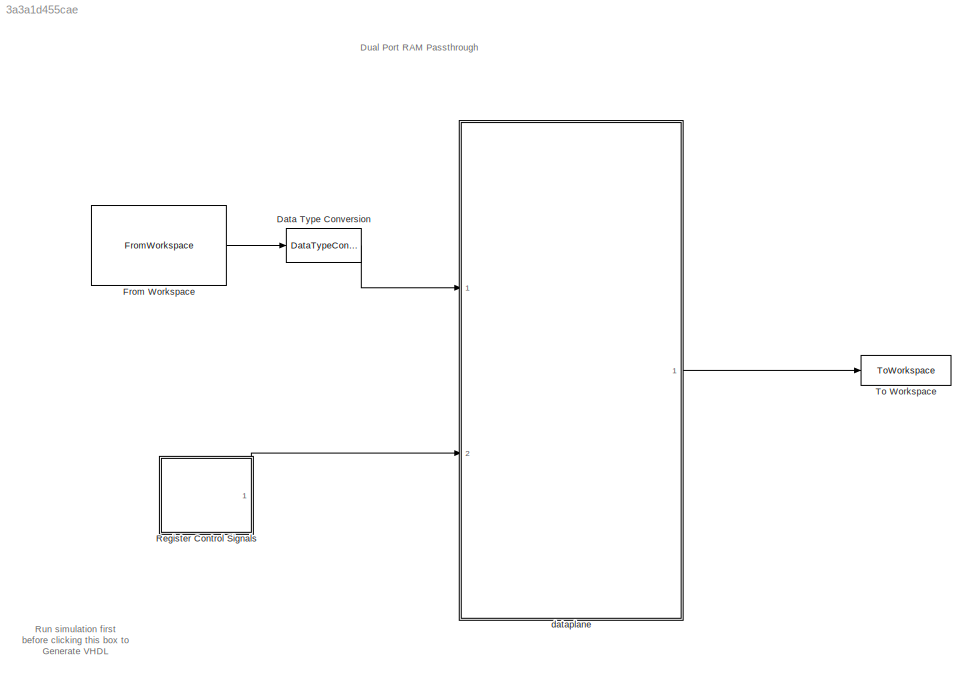
MODEL slx_3a3a1d455cae
KIND model
CONFIG AbsTol = auto
CONFIG EnableMultiTasking = off
CONFIG FixedStep = auto
CONFIG InitFcn = initCallback
CONFIG MaxStep = auto
CONFIG MinStep = auto
CONFIG RelTol = 1e-3
CONFIG SampleTimeConstraint = Unconstrained
CONFIG SolverName = FixedStepDiscrete
CONFIG StartTime = 0.0
CONFIG StopFcn = stopCallback
CONFIG StopTime = stopTime
BLOCK [DataTypeConversion] Data Type Conversion
  OutDataTypeStr = fixdt(1,32,28)
  RndMeth = Floor
  SaturateOnIntegerOverflow = off
BLOCK [FromWorkspace] From Workspace
  Interpolate = off
  OutDataTypeStr = double
  OutputAfterFinalValue = Setting to zero
  SampleTime = 1 / config.system.sampleClockFrequency
  VariableName = testSignal.asTimeSeries
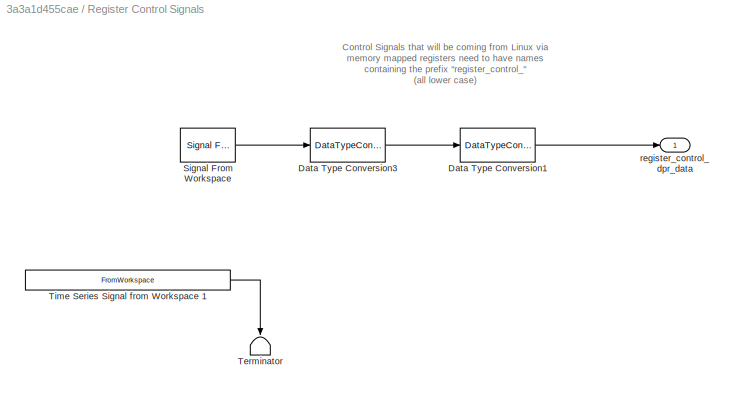
BLOCK [SubSystem] Register Control Signals
  Ports = [0, 1]
  RequestExecContextInheritance = off
BLOCK [DataTypeConversion] Register Control Signals/Data Type Conversion1
  ConvertRealWorld = Stored Integer (SI)
  OutDataTypeStr = fixdt(0,32,0)
  RndMeth = Floor
  SaturateOnIntegerOverflow = off
BLOCK [DataTypeConversion] Register Control Signals/Data Type Conversion3
  ConvertRealWorld = Stored Integer (SI)
  OutDataTypeStr = fixdt(0,32,8)
  RndMeth = Floor
  SaturateOnIntegerOverflow = off
BLOCK [Reference] Register Control Signals/Signal From Workspace  REF=dspsrcs4/Signal From
Workspace
  Ports = [0, 1]
  SourceBlock = dspsrcs4/Signal From\nWorkspace
  SourceProductBaseCode = DS
  SourceType = Signal From Workspace
BLOCK [Terminator] Register Control Signals/Terminator
  NameLocation = left
BLOCK [FromWorkspace] Register Control Signals/Time Series Signal from Workspace 1
  OutDataTypeStr = double
  SampleTime = 1 / config.system.sampleClockFrequency
  VariableName = mp.register{1}.timeseries
BLOCK [Outport] Register Control Signals/register_control_dpr_data 
  VectorParamsAs1DForOutWhenUnconnected = off
BLOCK [ToWorkspace] To Workspace
  FixptAsFi = on
  MaxDataPoints = inf
  Ports = [1]
  SampleTime = -1
  Save2DSignal = 2-D array (concatenate along first dimension)
  SaveFormat = Timeseries
  VariableName = dataOut
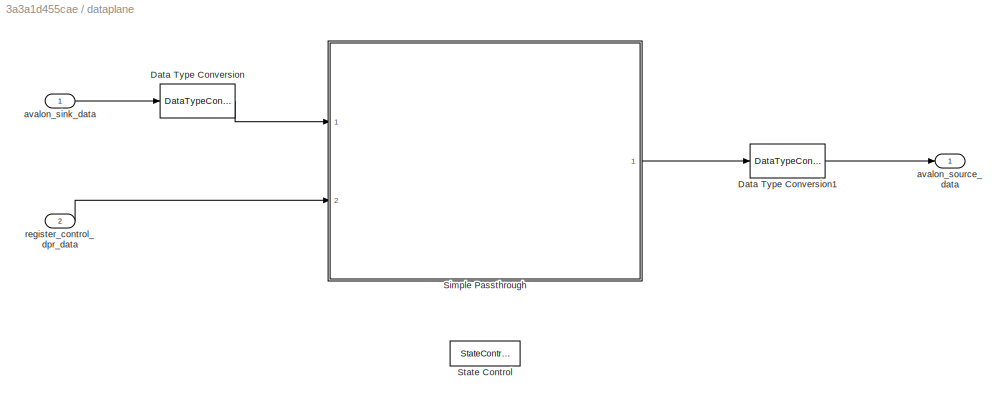
BLOCK [SubSystem] dataplane
  Ports = [2, 1]
  RequestExecContextInheritance = off
  TreatAsAtomicUnit = on
BLOCK [DataTypeConversion] dataplane/Data Type Conversion
  OutDataTypeStr = fixdt(1,24,23)
  RndMeth = Floor
  SaturateOnIntegerOverflow = off
BLOCK [DataTypeConversion] dataplane/Data Type Conversion1
  OutDataTypeStr = fixdt(1,mp.W_bits,mp.F_bits)
  RndMeth = Floor
  SaturateOnIntegerOverflow = off
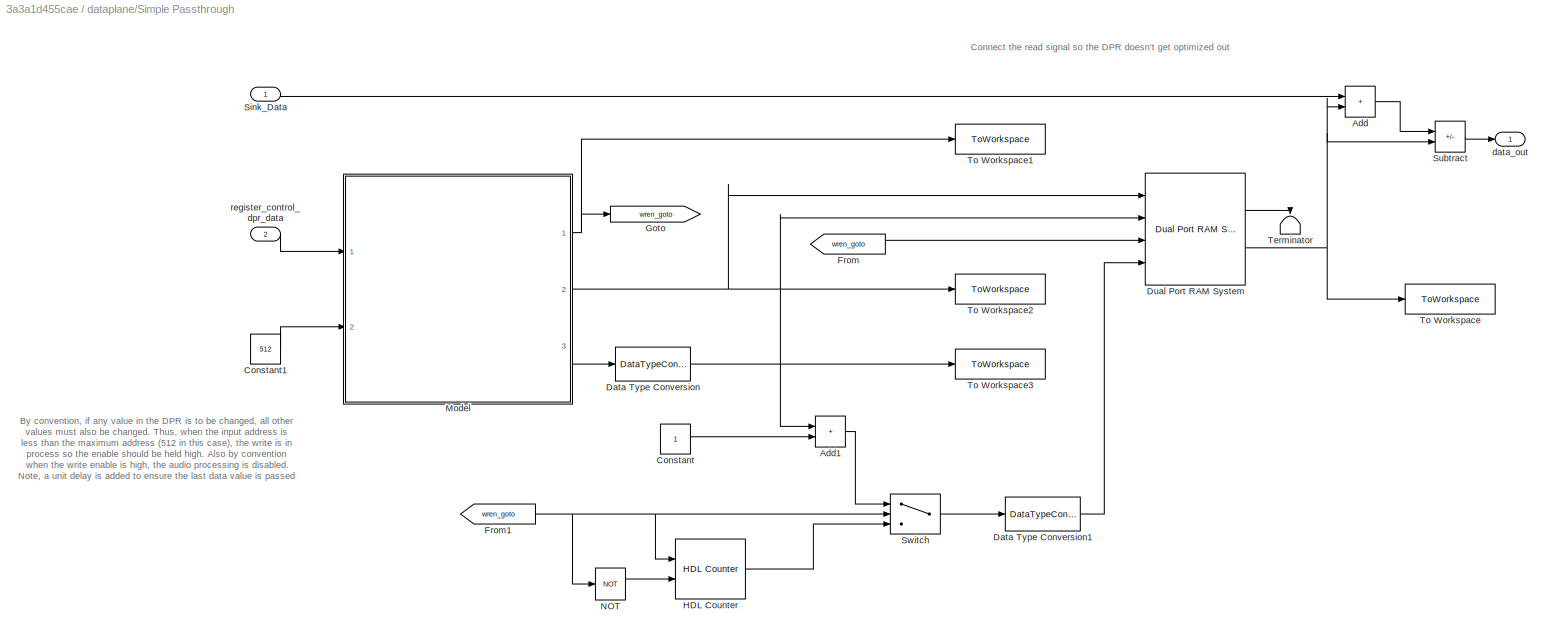
BLOCK [SubSystem] dataplane/Simple Passthrough 
  Ports = [2, 1]
  RequestExecContextInheritance = off
BLOCK [Sum] dataplane/Simple Passthrough /Add
  IconShape = rectangular
  Ports = [2, 1]
BLOCK [Sum] dataplane/Simple Passthrough /Add1
  IconShape = rectangular
  Ports = [2, 1]
BLOCK [Constant] dataplane/Simple Passthrough /Constant
BLOCK [Constant] dataplane/Simple Passthrough /Constant1
  OutDataTypeStr = uint32
  SampleTime = -1
  Value = 512
BLOCK [DataTypeConversion] dataplane/Simple Passthrough /Data Type Conversion
  OutDataTypeStr = fixdt(0,10,0)
  RndMeth = Floor
  SaturateOnIntegerOverflow = off
BLOCK [DataTypeConversion] dataplane/Simple Passthrough /Data Type Conversion1
  OutDataTypeStr = fixdt(0,10,0)
  RndMeth = Floor
  SaturateOnIntegerOverflow = off
BLOCK [Reference] dataplane/Simple Passthrough /Dual Port RAM System  REF=hdlsllib/HDL RAMs/Dual Port RAM System
  Ports = [4, 2]
  SourceBlock = hdlsllib/HDL RAMs/Dual Port RAM System
  SourceProductBaseCode = SL
  SourceType = hdl.RAM
BLOCK [From] dataplane/Simple Passthrough /From
  GotoTag = wren_goto
BLOCK [From] dataplane/Simple Passthrough /From1
  GotoTag = wren_goto
BLOCK [Goto] dataplane/Simple Passthrough /Goto
  GotoTag = wren_goto
BLOCK [Reference] dataplane/Simple Passthrough /HDL Counter  REF=hdlsllib/Sources/HDL Counter
  Ports = [2, 1]
  SourceBlock = hdlsllib/Sources/HDL Counter
  SourceProductBaseCode = SL
  SourceType = HDL Counter
BLOCK [ModelReference] dataplane/Simple Passthrough /Model
  ModelNameDialog = dual_port_ram_interface.slx
  ModelReferenceVersion = 1.113
  Ports = [2, 3]
BLOCK [Logic] dataplane/Simple Passthrough /NOT
  AllPortsSameDT = off
  IconShape = distinctive
  Operator = NOT
  OutDataTypeStr = boolean
  Ports = [1, 1]
BLOCK [Inport] dataplane/Simple Passthrough /Sink_Data
BLOCK [Sum] dataplane/Simple Passthrough /Subtract
  IconShape = rectangular
  Inputs = +-
  Ports = [2, 1]
BLOCK [Switch] dataplane/Simple Passthrough /Switch
  Criteria = u2 > Threshold
  InputSameDT = off
  SaturateOnIntegerOverflow = off
BLOCK [Terminator] dataplane/Simple Passthrough /Terminator
  NameLocation = left
BLOCK [ToWorkspace] dataplane/Simple Passthrough /To Workspace
  FixptAsFi = on
  MaxDataPoints = inf
  Ports = [1]
  SampleTime = -1
  SaveFormat = Timeseries
  VariableName = read_data
BLOCK [ToWorkspace] dataplane/Simple Passthrough /To Workspace1
  FixptAsFi = on
  MaxDataPoints = inf
  Ports = [1]
  SampleTime = -1
  SaveFormat = Timeseries
  VariableName = wren
BLOCK [ToWorkspace] dataplane/Simple Passthrough /To Workspace2
  FixptAsFi = on
  MaxDataPoints = inf
  Ports = [1]
  SampleTime = -1
  SaveFormat = Timeseries
  VariableName = write_data
BLOCK [ToWorkspace] dataplane/Simple Passthrough /To Workspace3
  FixptAsFi = on
  MaxDataPoints = inf
  Ports = [1]
  SampleTime = -1
  SaveFormat = Timeseries
  VariableName = write_addr
BLOCK [Outport] dataplane/Simple Passthrough /data_out
BLOCK [Inport] dataplane/Simple Passthrough /register_control_dpr_data
  Port = 2
BLOCK [StateControl] dataplane/State Control
  StateControl = Synchronous
BLOCK [Inport] dataplane/avalon_sink_data
BLOCK [Outport] dataplane/avalon_source_data
  VectorParamsAs1DForOutWhenUnconnected = off
BLOCK [Inport] dataplane/register_control_dpr_data
  Port = 2
ANNOTATION (root): Dual Port RAM Passthrough
ANNOTATION (root): Run simulation first before clicking this box to Generate VHDL
ANNOTATION Register Control Signals: Control Signals that will be coming from Linux via memory mapped registers need to have names containing the prefix "register_control_" (all lower case)
ANNOTATION dataplane/Simple Passthrough : By convention, if any value in the DPR is to be changed, all other values must also be changed. Thus, when the input address is less than the maximum address (512 in this case), the write is in process so the enable should be held high. Also by convention when the write enable is high, the audio processing is disabled. Note, a unit delay is added to ensure the last data value is passed in correctl...<+2ch>
ANNOTATION dataplane/Simple Passthrough : Connect the read signal so the DPR doesn't get optimized out
LINE Data Type Conversion:1 -> dataplane:1
LINE From Workspace:1 -> Data Type Conversion:1
LINE Register Control Signals/Data Type Conversion1:1 -> Register Control Signals/register_control_dpr_data :1
LINE Register Control Signals/Data Type Conversion3:1 -> Register Control Signals/Data Type Conversion1:1
LINE Register Control Signals/Signal From Workspace:1 -> Register Control Signals/Data Type Conversion3:1
LINE Register Control Signals/Time Series Signal from Workspace 1:1 -> Register Control Signals/Terminator:1
LINE Register Control Signals:1 -> dataplane:2
LINE dataplane/Data Type Conversion1:1 -> dataplane/avalon_source_data:1
LINE dataplane/Data Type Conversion:1 -> dataplane/Simple Passthrough :1
LINE dataplane/Simple Passthrough /Add1:1 -> dataplane/Simple Passthrough /Switch:1
LINE dataplane/Simple Passthrough /Add:1 -> dataplane/Simple Passthrough /Subtract:1
LINE dataplane/Simple Passthrough /Constant1:1 -> dataplane/Simple Passthrough /Model:2
LINE dataplane/Simple Passthrough /Constant:1 -> dataplane/Simple Passthrough /Add1:2
LINE dataplane/Simple Passthrough /Data Type Conversion1:1 -> dataplane/Simple Passthrough /Dual Port RAM System:4
NET dataplane/Simple Passthrough /Data Type Conversion:1 -> dataplane/Simple Passthrough /Add1:1, dataplane/Simple Passthrough /Dual Port RAM System:2, dataplane/Simple Passthrough /To Workspace3:1
LINE dataplane/Simple Passthrough /Dual Port RAM System:1 -> dataplane/Simple Passthrough /Terminator:1
NET dataplane/Simple Passthrough /Dual Port RAM System:2 -> dataplane/Simple Passthrough /Add:2, dataplane/Simple Passthrough /Subtract:2, dataplane/Simple Passthrough /To Workspace:1
NET dataplane/Simple Passthrough /From1:1 -> dataplane/Simple Passthrough /HDL Counter:1, dataplane/Simple Passthrough /NOT:1, dataplane/Simple Passthrough /Switch:2
LINE dataplane/Simple Passthrough /From:1 -> dataplane/Simple Passthrough /Dual Port RAM System:3
LINE dataplane/Simple Passthrough /HDL Counter:1 -> dataplane/Simple Passthrough /Switch:3
NET dataplane/Simple Passthrough /Model:1 -> dataplane/Simple Passthrough /Goto:1, dataplane/Simple Passthrough /To Workspace1:1
NET dataplane/Simple Passthrough /Model:2 -> dataplane/Simple Passthrough /Dual Port RAM System:1, dataplane/Simple Passthrough /To Workspace2:1
LINE dataplane/Simple Passthrough /Model:3 -> dataplane/Simple Passthrough /Data Type Conversion:1
LINE dataplane/Simple Passthrough /NOT:1 -> dataplane/Simple Passthrough /HDL Counter:2
LINE dataplane/Simple Passthrough /Sink_Data:1 -> dataplane/Simple Passthrough /Add:1
LINE dataplane/Simple Passthrough /Subtract:1 -> dataplane/Simple Passthrough /data_out:1
LINE dataplane/Simple Passthrough /Switch:1 -> dataplane/Simple Passthrough /Data Type Conversion1:1
LINE dataplane/Simple Passthrough /register_control_dpr_data:1 -> dataplane/Simple Passthrough /Model:1
LINE dataplane/Simple Passthrough :1 -> dataplane/Data Type Conversion1:1
LINE dataplane/avalon_sink_data:1 -> dataplane/Data Type Conversion:1
LINE dataplane/register_control_dpr_data:1 -> dataplane/Simple Passthrough :2
LINE dataplane:1 -> To Workspace:1
note: NET lines group one-source signal fan-out (src -> all destinations, sorted); 1:1 wires keep LINE
